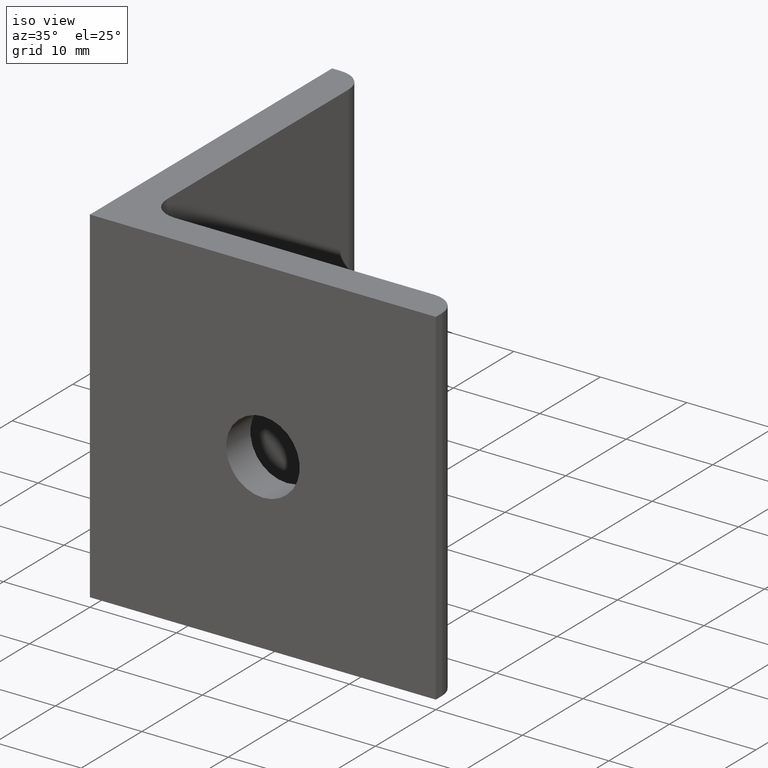
[diagram: clean part render]
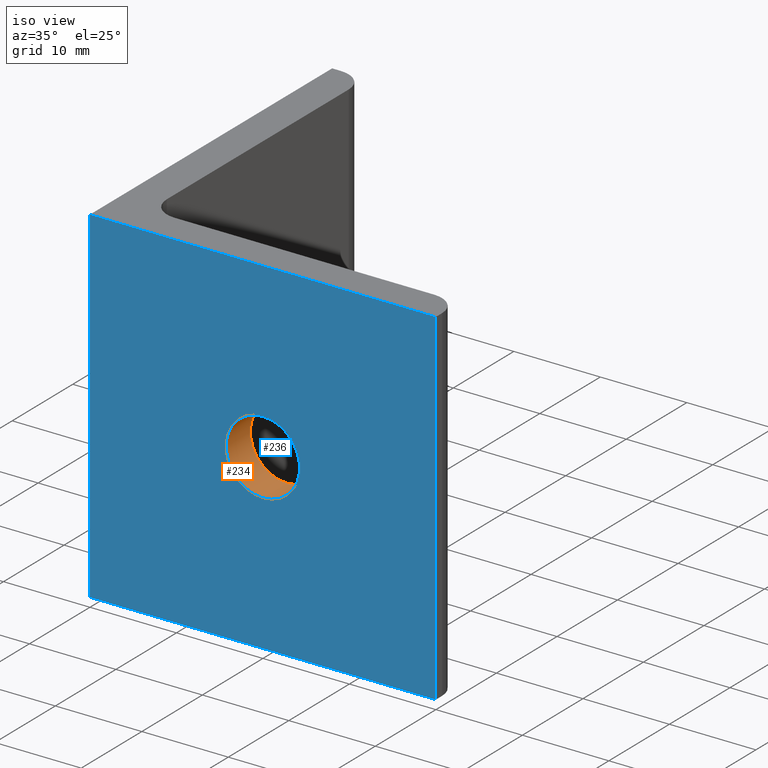
[diagram: same view with the hole feature highlighted: cylindrical wall and planar end face, labeled with their STEP entity ids]
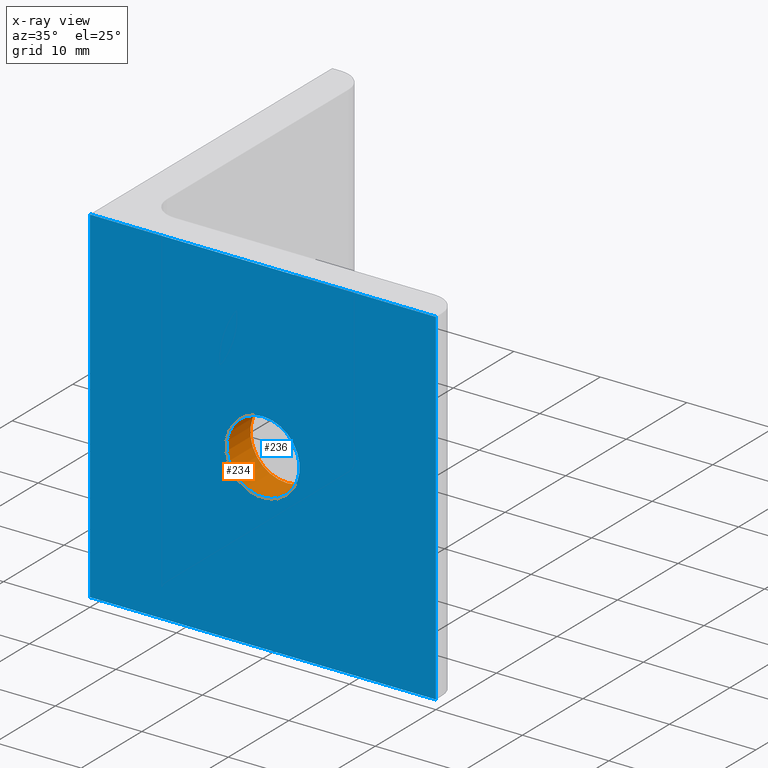
[diagram: x-ray of the same camera — body ghosted, the hole faces saturated]
A machine part, iso view. The highlighted faces form one hole feature of diameter 8.5 mm: the cylindrical wall (entity #234, orange) and its adjacent planar end face (entity #236, blue) — they share a circular edge in the B-rep.
The next image is the same camera in x-ray (body ghosted, the hole faces saturated) — the bore reads through the body.
Wall:
#66=FACE_BOUND('',#87,.T.);
#72=FACE_OUTER_BOUND('',#86,.T.);
#86=EDGE_LOOP('',(#168));
#87=EDGE_LOOP('',(#169));
#105=CIRCLE('',#252,4.25);
#106=CIRCLE('',#253,4.25000000000001);
#115=VERTEX_POINT('',#347);
#116=VERTEX_POINT('',#349);
#137=EDGE_CURVE('',#115,#115,#105,.T.);
#138=EDGE_CURVE('',#116,#116,#106,.T.);
#168=ORIENTED_EDGE('',*,*,#137,.F.);
#169=ORIENTED_EDGE('',*,*,#138,.T.);
#229=CYLINDRICAL_SURFACE('',#251,4.25);
#234=ADVANCED_FACE('',(#72,#66),#229,.F.);
#251=AXIS2_PLACEMENT_3D('',#346,#279,#280);
#252=AXIS2_PLACEMENT_3D('',#348,#281,#282);
#253=AXIS2_PLACEMENT_3D('',#350,#283,#284);
#279=DIRECTION('center_axis',(0.,-1.,0.));
#280=DIRECTION('ref_axis',(1.,0.,0.));
#281=DIRECTION('center_axis',(0.,-1.,0.));
#282=DIRECTION('ref_axis',(0.,0.,-1.));
#283=DIRECTION('center_axis',(0.,-1.,0.));
#284=DIRECTION('ref_axis',(-1.,0.,0.));
#346=CARTESIAN_POINT('Origin',(20.,4.00000000999999,7.105427E-15));
#347=CARTESIAN_POINT('',(20.,4.,-4.24999999999999));
#348=CARTESIAN_POINT('Origin',(20.,4.,7.105427E-15));
#349=CARTESIAN_POINT('',(20.,0.,-4.24999999999999));
#350=CARTESIAN_POINT('Origin',(20.,0.,7.105427E-15));
End face:
#16=LINE('',#356,#37);
#19=LINE('',#362,#40);
#20=LINE('',#364,#41);
#21=LINE('',#365,#42);
#37=VECTOR('',#288,40.);
#40=VECTOR('',#293,40.);
#41=VECTOR('',#294,40.);
#42=VECTOR('',#295,40.);
#58=PLANE('',#255);
#68=FACE_BOUND('',#91,.T.);
#74=FACE_OUTER_BOUND('',#90,.T.);
#90=EDGE_LOOP('',(#175,#176,#177,#178));
#91=EDGE_LOOP('',(#179));
#106=CIRCLE('',#253,4.25000000000001);
#116=VERTEX_POINT('',#349);
#118=VERTEX_POINT('',#353);
#119=VERTEX_POINT('',#355);
#121=VERTEX_POINT('',#361);
#122=VERTEX_POINT('',#363);
#138=EDGE_CURVE('',#116,#116,#106,.T.);
#140=EDGE_CURVE('',#119,#118,#16,.T.);
#143=EDGE_CURVE('',#118,#121,#19,.T.);
#144=EDGE_CURVE('',#122,#121,#20,.T.);
#145=EDGE_CURVE('',#119,#122,#21,.T.);
#175=ORIENTED_EDGE('',*,*,#143,.T.);
#176=ORIENTED_EDGE('',*,*,#144,.F.);
#177=ORIENTED_EDGE('',*,*,#145,.F.);
#178=ORIENTED_EDGE('',*,*,#140,.T.);
#179=ORIENTED_EDGE('',*,*,#138,.F.);
#236=ADVANCED_FACE('',(#74,#68),#58,.F.);
#253=AXIS2_PLACEMENT_3D('',#350,#283,#284);
#255=AXIS2_PLACEMENT_3D('',#360,#291,#292);
#283=DIRECTION('center_axis',(0.,-1.,0.));
#284=DIRECTION('ref_axis',(-1.,0.,0.));
#288=DIRECTION('',(0.,0.,-1.));
#291=DIRECTION('center_axis',(0.,1.,0.));
#292=DIRECTION('ref_axis',(0.,0.,1.));
#293=DIRECTION('',(1.,0.,0.));
#294=DIRECTION('',(0.,0.,-1.));
#295=DIRECTION('',(1.,0.,0.));
#349=CARTESIAN_POINT('',(20.,0.,-4.24999999999999));
#350=CARTESIAN_POINT('Origin',(20.,0.,7.105427E-15));
#353=CARTESIAN_POINT('',(0.,0.,-20.));
#355=CARTESIAN_POINT('',(0.,0.,20.));
#356=CARTESIAN_POINT('',(0.,0.,20.));
#360=CARTESIAN_POINT('Origin',(-2.,0.,-22.));
#361=CARTESIAN_POINT('',(40.,0.,-20.));
#362=CARTESIAN_POINT('',(0.,0.,-20.));
#363=CARTESIAN_POINT('',(40.,0.,20.));
#364=CARTESIAN_POINT('',(40.,0.,20.));
#365=CARTESIAN_POINT('',(0.,0.,20.));